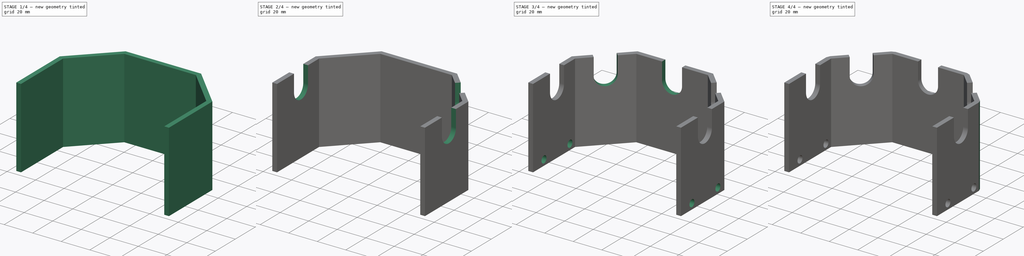
[diagram: build sequence overview — one tinted view per stage of 4, left to right]
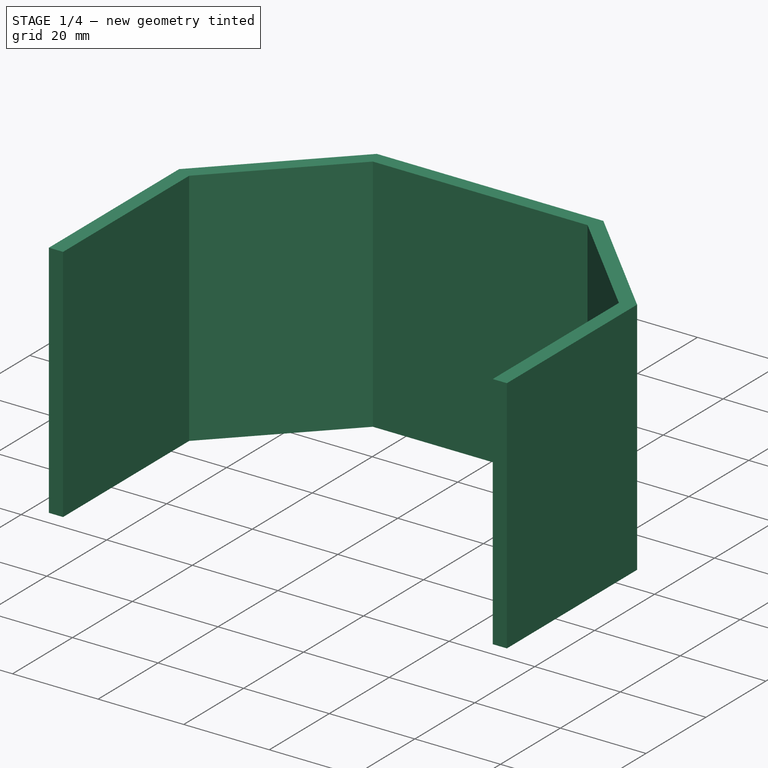
[diagram: stage 1 of 4 — iso view after this stage's code; geometry added in this stage tinted green]
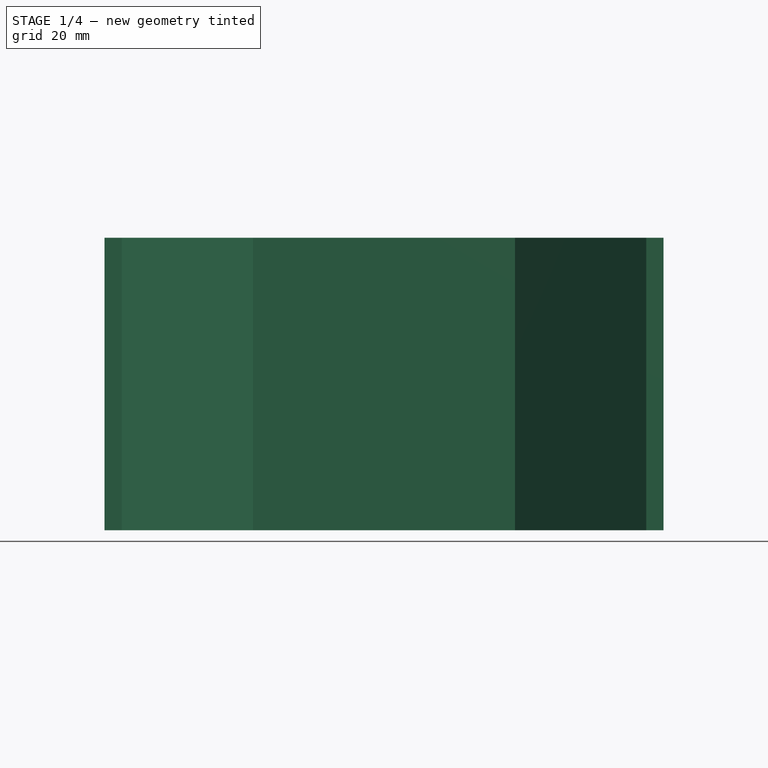
[diagram: stage 1 of 4 — front view after this stage's code; geometry added in this stage tinted green]
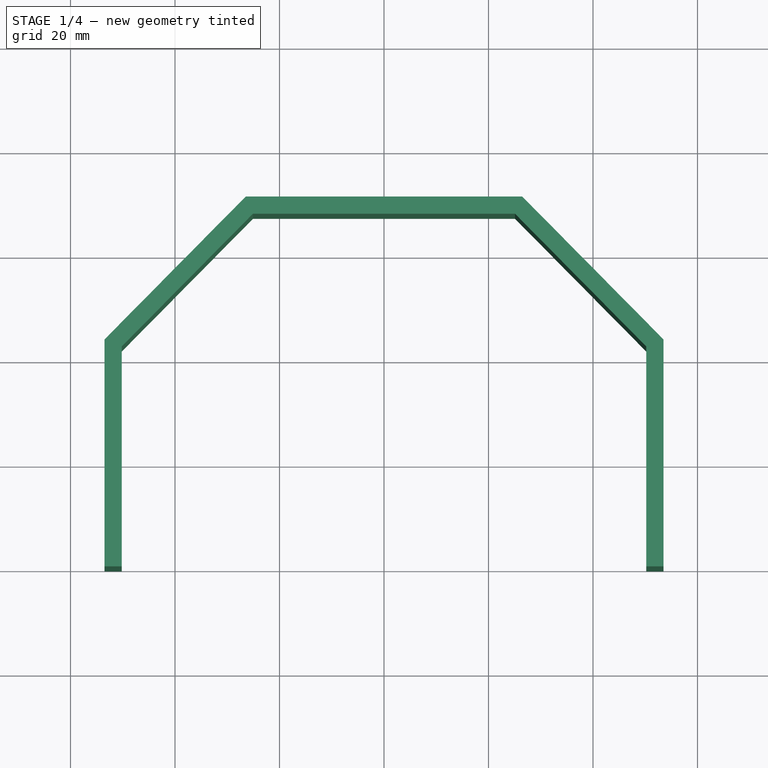
[diagram: stage 1 of 4 — top view after this stage's code; geometry added in this stage tinted green]
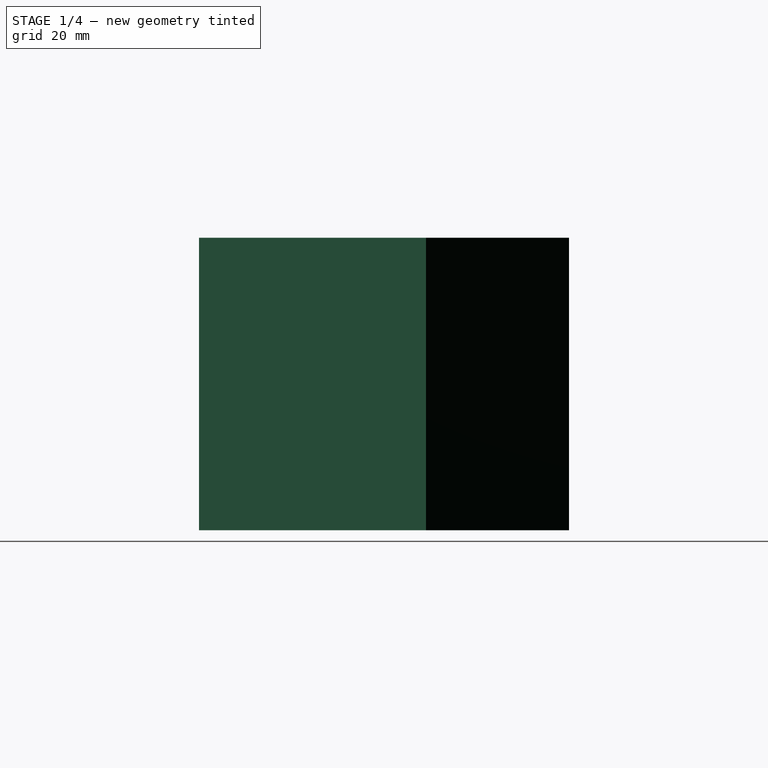
[diagram: stage 1 of 4 — right view after this stage's code; geometry added in this stage tinted green]
FCSTD DOCUMENT
Label: X_SingleExtruderShield
objects: Sketcher::SketchObject×5, PartDesign::Pocket×4, PartDesign::Chamfer×2, PartDesign::Pad×1, Part::Thickness×1, PartDesign::Mirrored×1
note: 19 computed .brp shape members not serialized (recipe doc carries the construction recipe); baked Part::Feature solids carry a one-line shape summary decoded from their .brp

FEATURE [Sketcher::SketchObject] Sketch
  sketch-geometry (6):
    g0: LineSegment StartX=-50.2 StartY=0 StartZ=0 EndX=50.2 EndY=0 EndZ=0
    g1: LineSegment StartX=50.2 StartY=0 StartZ=0 EndX=50.2 EndY=42.084 EndZ=0
    g2: LineSegment StartX=25.084 StartY=67.5 StartZ=0 EndX=-25.084 EndY=67.5 EndZ=0
    g3: LineSegment StartX=-50.2 StartY=42.084 StartZ=0 EndX=-50.2 EndY=0 EndZ=0
    g4: LineSegment StartX=-50.2 StartY=42.084 StartZ=0 EndX=-25.084 EndY=67.5 EndZ=0
    g5: LineSegment StartX=50.2 StartY=42.084 StartZ=0 EndX=25.084 EndY=67.5 EndZ=0
  constraints (17):
    c: Coincident(g0,g1)
    c: Coincident(g3,g0)
    c: Horizontal(g2)
    c: Vertical(g1)
    c: Vertical(g3)
    c: PointOnObject(g0,g-1)
    c: Coincident(g2,g4)
    c: Coincident(g4,g3)
    c: Coincident(g2,g5)
    c: Coincident(g5,g1)
    c: Symmetric(g0,g0,g-2)
    c: Equal(g1,g3)
    c: Equal(g5,g4)
    c: DistanceY(g2,g0) = -67.5
    c: DistanceX(g0) = 100.4
    c: DistanceY(g3) = -42.084
    c: DistanceX(g2) = -25.084
FEATURE [PartDesign::Pad] Pad
  Length = 56
  Length2 = 100
  Sketch = -> Sketch
  Type = 0
FEATURE [Part::Thickness] Thickness
  Faces = -> Pad [Face8,Face4,Face7]
  Intersection = false
  Join = 2
  Mode = 0
  SelfIntersection = false
  Value = 3.3
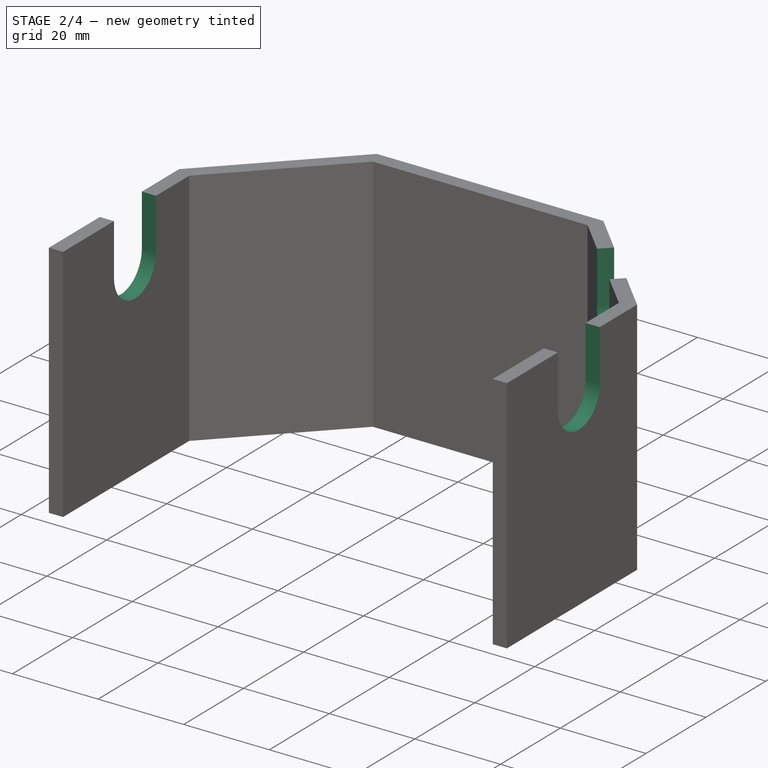
[diagram: stage 2 of 4 — iso view after this stage's code; geometry added in this stage tinted green]
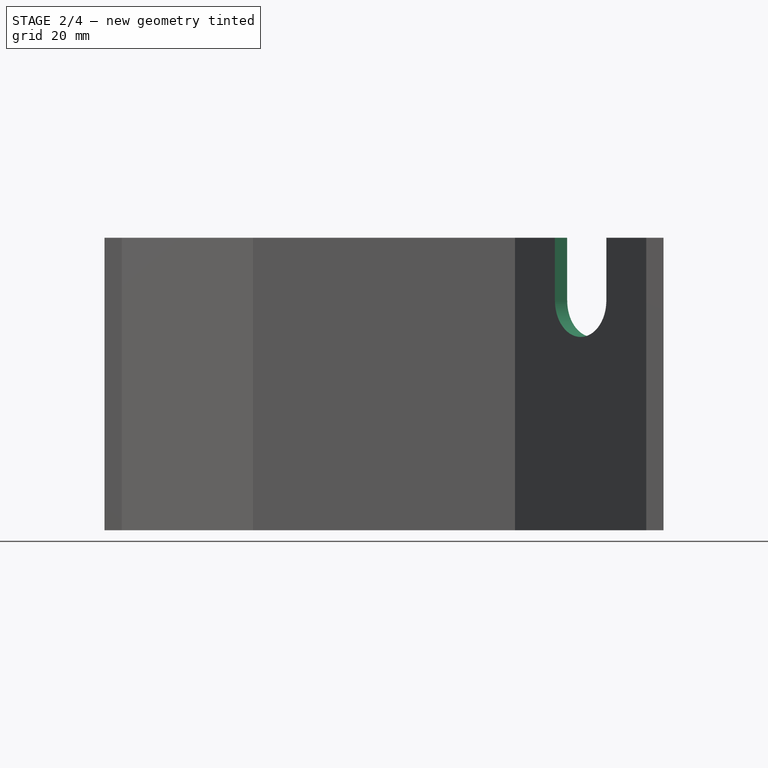
[diagram: stage 2 of 4 — front view after this stage's code; geometry added in this stage tinted green]
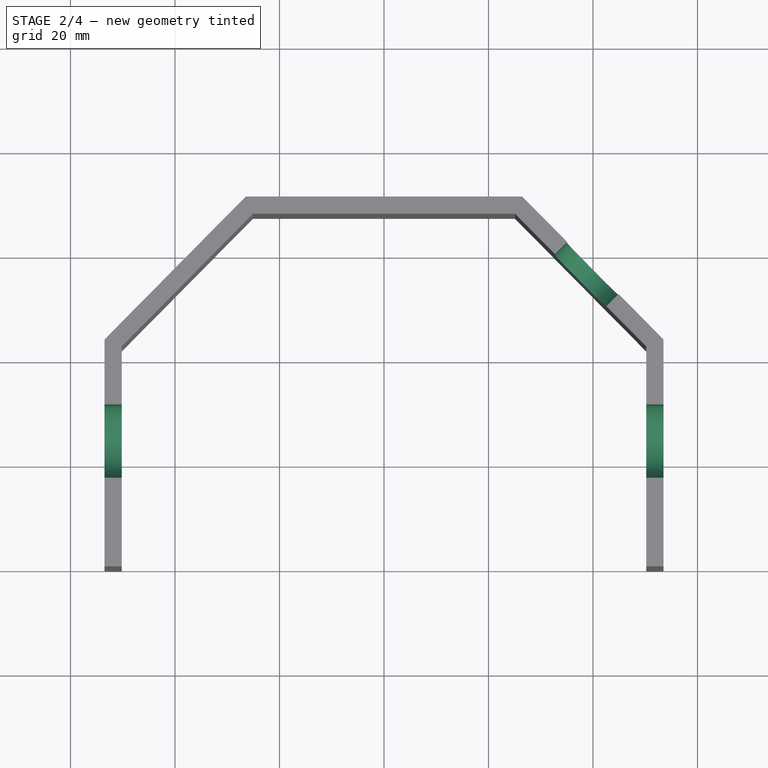
[diagram: stage 2 of 4 — top view after this stage's code; geometry added in this stage tinted green]
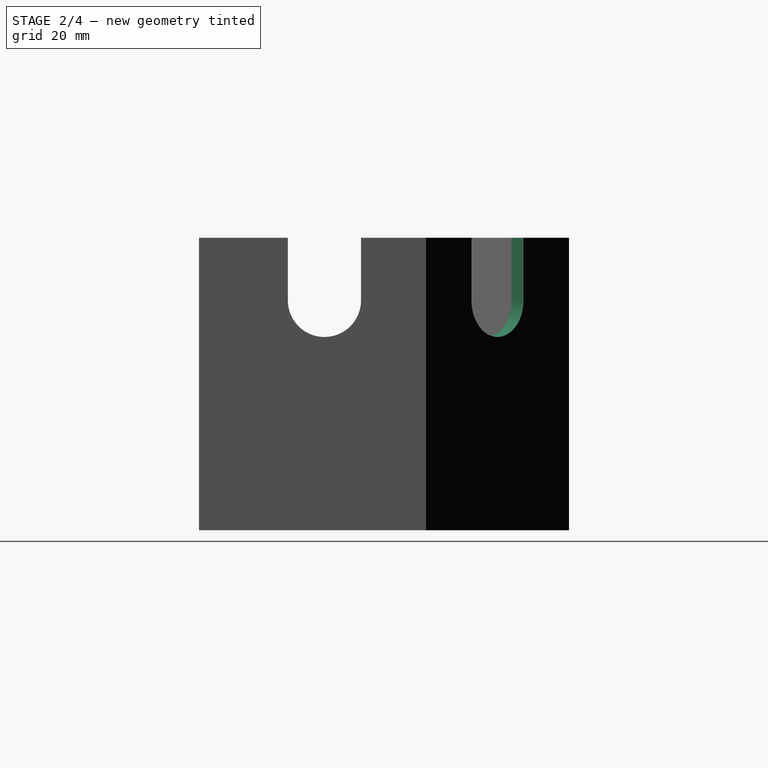
[diagram: stage 2 of 4 — right view after this stage's code; geometry added in this stage tinted green]
FEATURE [Sketcher::SketchObject] Sketch002
  ExternalGeometry = -> [Thickness]
  Placement = pos=(53.5,0,0) rot=(0.57735,0.57735,0.57735;2.0944rad)
  Support = -> Thickness [Face12]
  sketch-geometry (4):
    g0: LineSegment StartX=17 StartY=56 StartZ=0 EndX=17 EndY=44 EndZ=0
    g1: ArcOfCircle CenterX=24 CenterY=44 CenterZ=0 NormalX=0 NormalY=0 NormalZ=1 Radius=7 StartAngle=3.14159 EndAngle=6.28319
    g2: LineSegment StartX=31 StartY=44 StartZ=0 EndX=31 EndY=56 EndZ=0
    g3: LineSegment StartX=31 StartY=56 StartZ=0 EndX=17 EndY=56 EndZ=0
  constraints (11):
    c: Vertical(g0)
    c: Tangent(g0,g1)
    c: Tangent(g1,g2)
    c: Coincident(g2,g3)
    c: Coincident(g3,g0)
    c: Horizontal(g3)
    c: PointOnObject(g-3,g3)
    c: Vertical(g2)
    c: DistanceY(g0) = -12
    c: Radius(g1) = 7
    c: DistanceX(g1) = 24
FEATURE [PartDesign::Pocket] Pocket
  Length = 5
  Sketch = -> Sketch002
  Type = 1
FEATURE [Sketcher::SketchObject] Sketch003
  ExternalGeometry = -> [Pocket]
  Placement = pos=(48.7858,48.21,0) rot=(0.283259,0.678146,0.678146;2.58954rad)
  Support = -> Pocket [Face15]
  sketch-geometry (5):
    g0: LineSegment StartX=5.52617 StartY=58 StartZ=0 EndX=5.52617 EndY=44 EndZ=0
    g1: ArcOfCircle CenterX=12.5262 CenterY=44 CenterZ=0 NormalX=0 NormalY=0 NormalZ=1 Radius=7 StartAngle=3.14159 EndAngle=6.28319
    g2: LineSegment StartX=19.5262 StartY=44 StartZ=0 EndX=19.5262 EndY=58 EndZ=0
    g3: LineSegment StartX=19.5262 StartY=58 StartZ=0 EndX=5.52617 EndY=58 EndZ=0
    g4: LineSegment [constr] StartX=12.5262 StartY=44 StartZ=0 EndX=12.5262 EndY=56 EndZ=0
  constraints (13):
    c: Vertical(g0)
    c: Tangent(g0,g1)
    c: Tangent(g1,g2)
    c: Coincident(g2,g3)
    c: Horizontal(g3)
    c: Coincident(g3,g0)
    c: Vertical(g2)
    c: Radius(g1) = 7
    c: DistanceY(g0) = -14
    c: Coincident(g4,g1)
    c: Vertical(g4)
    c: Symmetric(g-3,g-3,g4)
    c: DistanceY(g4) = 12
FEATURE [PartDesign::Pocket] Pocket001
  Length = 5
  Sketch = -> Sketch003
  Type = 0
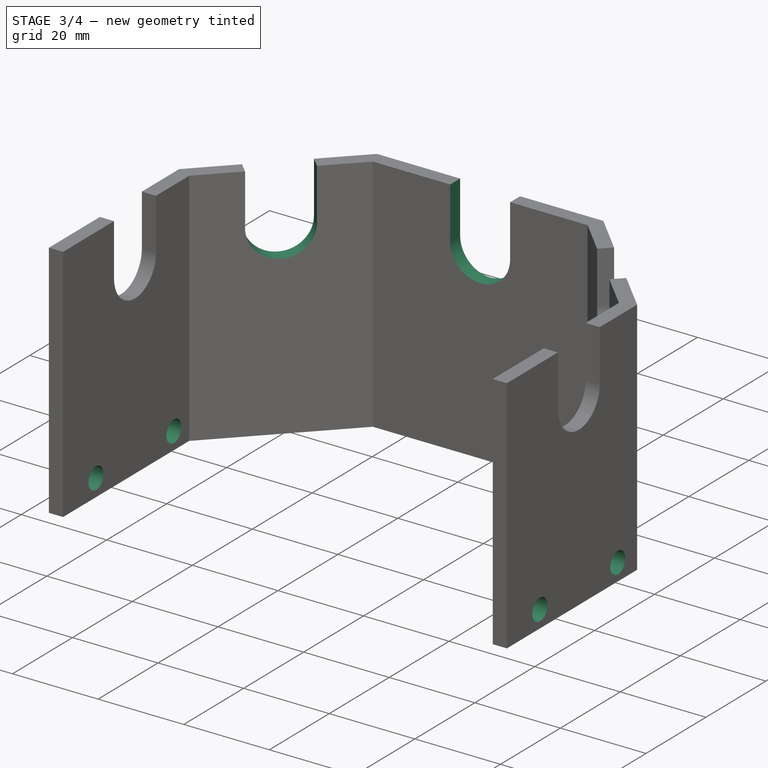
[diagram: stage 3 of 4 — iso view after this stage's code; geometry added in this stage tinted green]
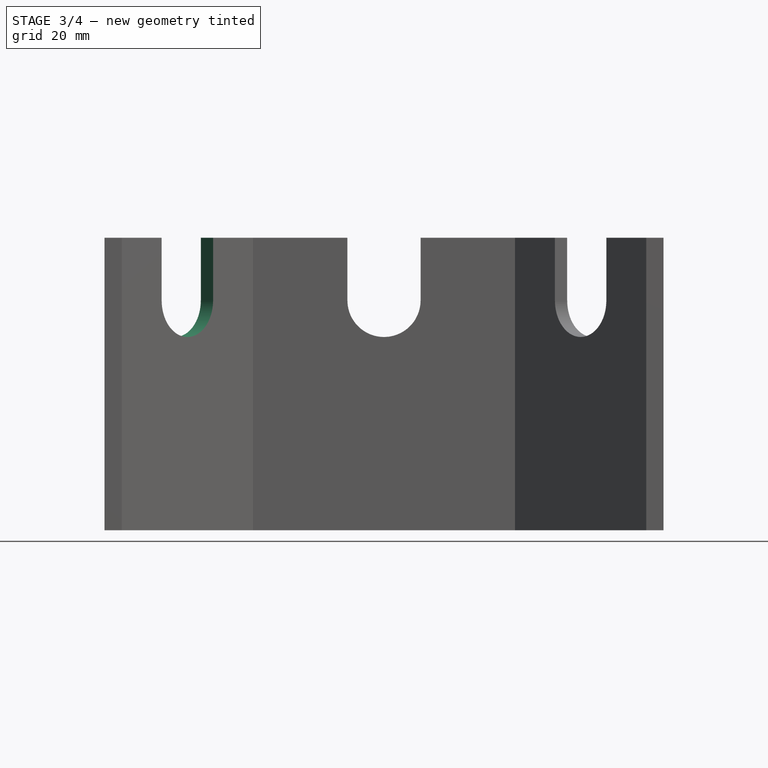
[diagram: stage 3 of 4 — front view after this stage's code; geometry added in this stage tinted green]
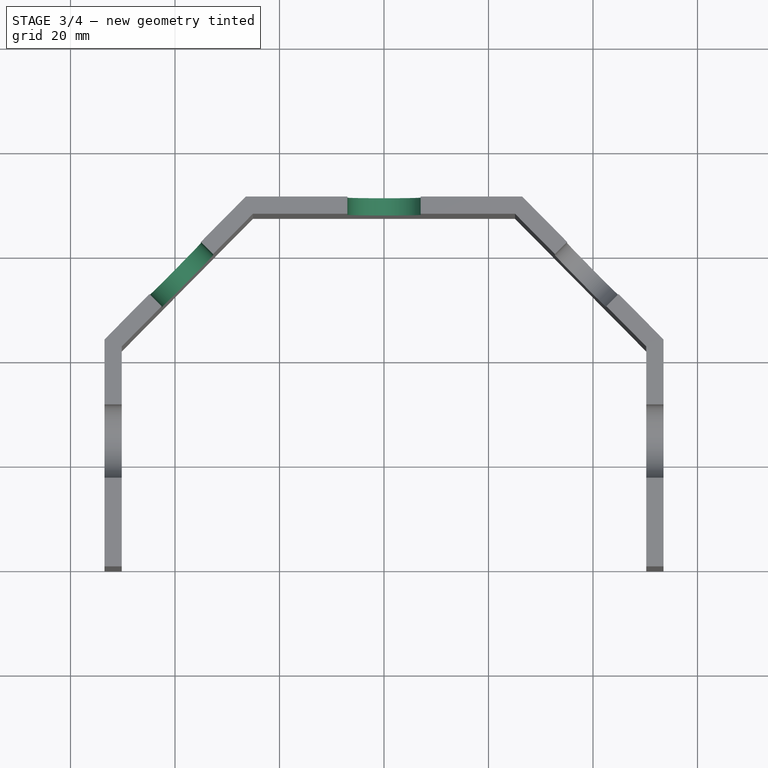
[diagram: stage 3 of 4 — top view after this stage's code; geometry added in this stage tinted green]
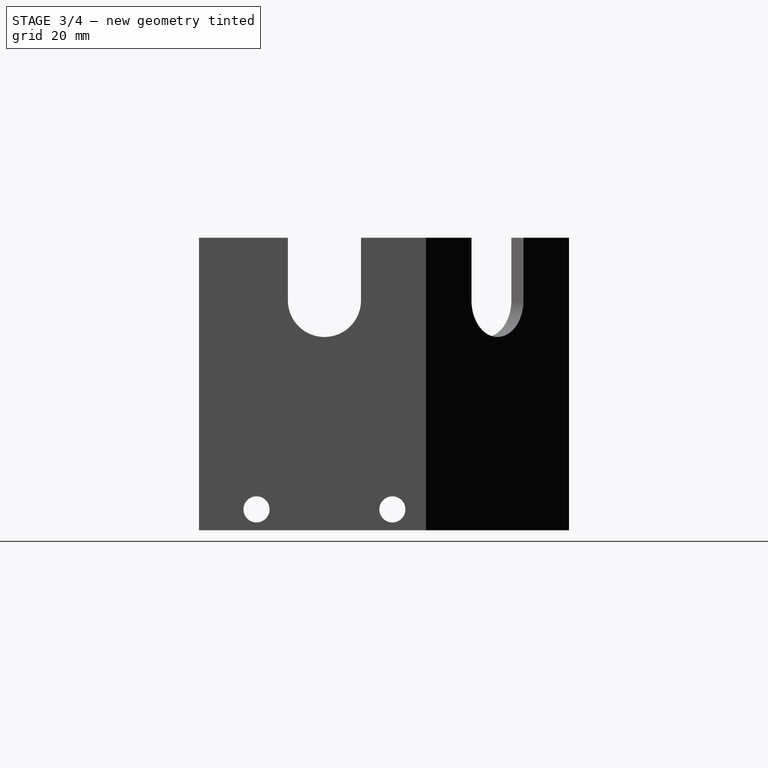
[diagram: stage 3 of 4 — right view after this stage's code; geometry added in this stage tinted green]
FEATURE [PartDesign::Mirrored] Mirrored
  Originals = -> [Pocket001]
  StdMirrorPlane = YZ
FEATURE [Sketcher::SketchObject] Sketch003001  label="Sketch004"
  ExternalGeometry = -> [Mirrored]
  Placement = pos=(0,70.8,0) rot=(0,0.707107,0.707107;3.14159rad)
  Support = -> Mirrored [Face17]
  sketch-geometry (4):
    g0: LineSegment StartX=-7 StartY=56 StartZ=0 EndX=-7 EndY=44 EndZ=0
    g1: ArcOfCircle CenterX=0 CenterY=44 CenterZ=0 NormalX=0 NormalY=0 NormalZ=1 Radius=7 StartAngle=3.14159 EndAngle=6.28319
    g2: LineSegment StartX=7 StartY=44 StartZ=0 EndX=7 EndY=56 EndZ=0
    g3: LineSegment StartX=7 StartY=56 StartZ=0 EndX=-7 EndY=56 EndZ=0
  constraints (11):
    c: Vertical(g0)
    c: Tangent(g0,g1)
    c: Tangent(g1,g2)
    c: Coincident(g2,g3)
    c: Horizontal(g3)
    c: Coincident(g3,g0)
    c: Vertical(g2)
    c: Radius(g1) = 7
    c: DistanceY(g0) = -12
    c: PointOnObject(g1,g-2)
    c: PointOnObject(g-3,g3)
FEATURE [PartDesign::Pocket] Pocket002
  Length = 5
  Sketch = -> Sketch003001
  Type = 1
FEATURE [Sketcher::SketchObject] Sketch003002
  Placement = pos=(53.5,0,0) rot=(0.57735,0.57735,0.57735;2.0944rad)
  Support = -> Pocket002 [Face19]
  sketch-geometry (3):
    g0: Circle CenterX=11 CenterY=4 CenterZ=0 NormalX=0 NormalY=0 NormalZ=1 Radius=2.5
    g1: LineSegment [constr] StartX=11 StartY=4 StartZ=0 EndX=37 EndY=4 EndZ=0
    g2: Circle CenterX=37 CenterY=4 CenterZ=0 NormalX=0 NormalY=0 NormalZ=1 Radius=2.5
  constraints (8):
    c: Coincident(g1,g0)
    c: Horizontal(g1)
    c: Coincident(g2,g1)
    c: Equal(g2,g0)
    c: Radius(g2) = 2.5
    c: DistanceX(g0) = 11
    c: DistanceY(g0) = 4
    c: DistanceX(g1) = 26
FEATURE [PartDesign::Pocket] Pocket003
  Length = 5
  Sketch = -> Sketch003002
  Type = 1
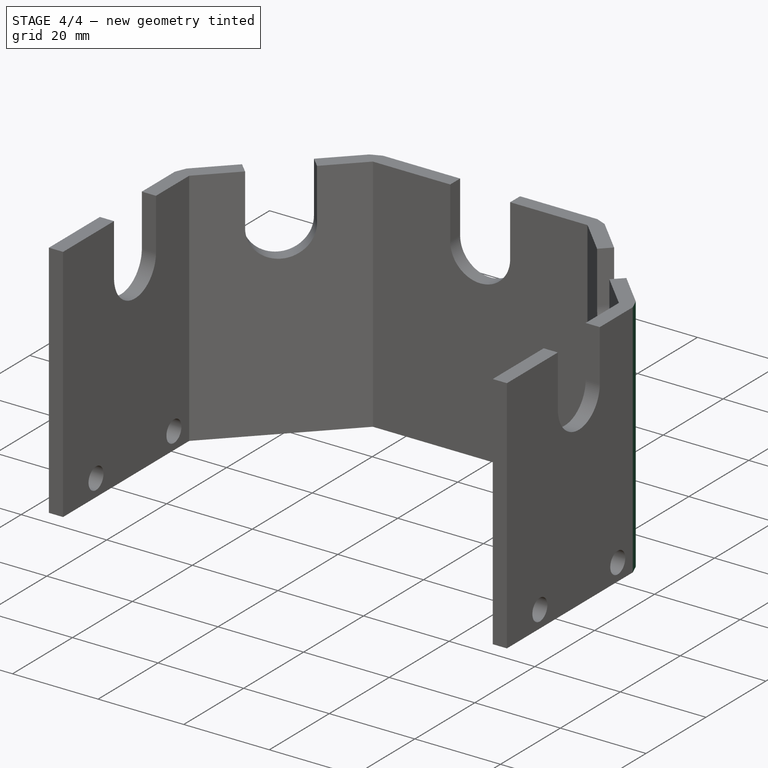
[diagram: stage 4 of 4 — iso view after this stage's code; geometry added in this stage tinted green]
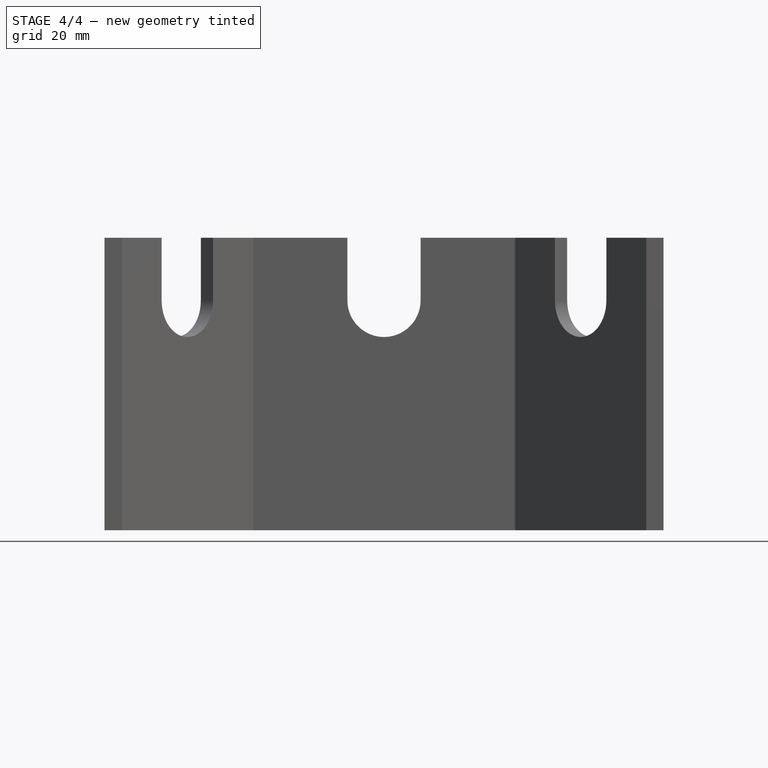
[diagram: stage 4 of 4 — front view after this stage's code; geometry added in this stage tinted green]
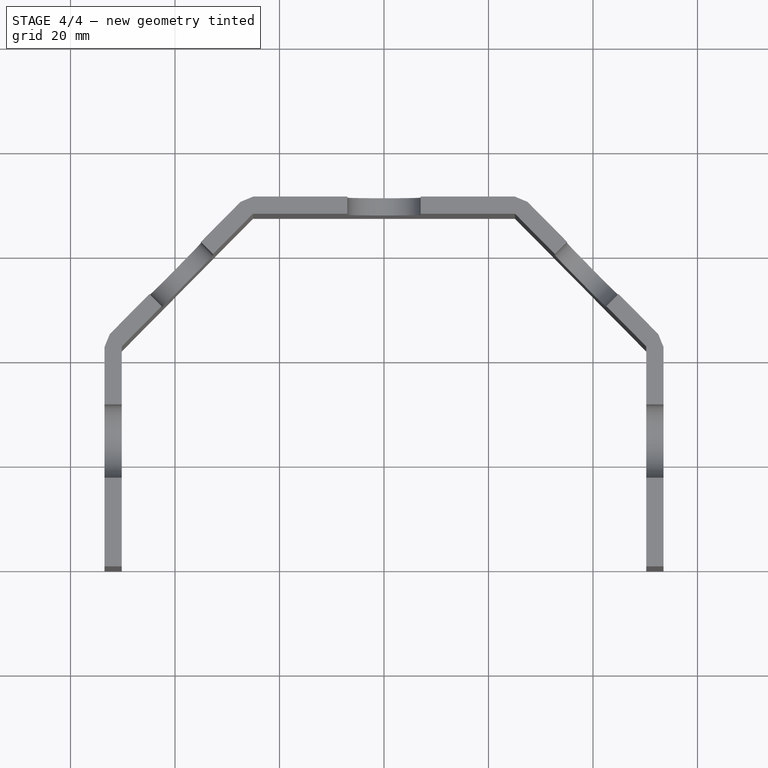
[diagram: stage 4 of 4 — top view after this stage's code; geometry added in this stage tinted green]
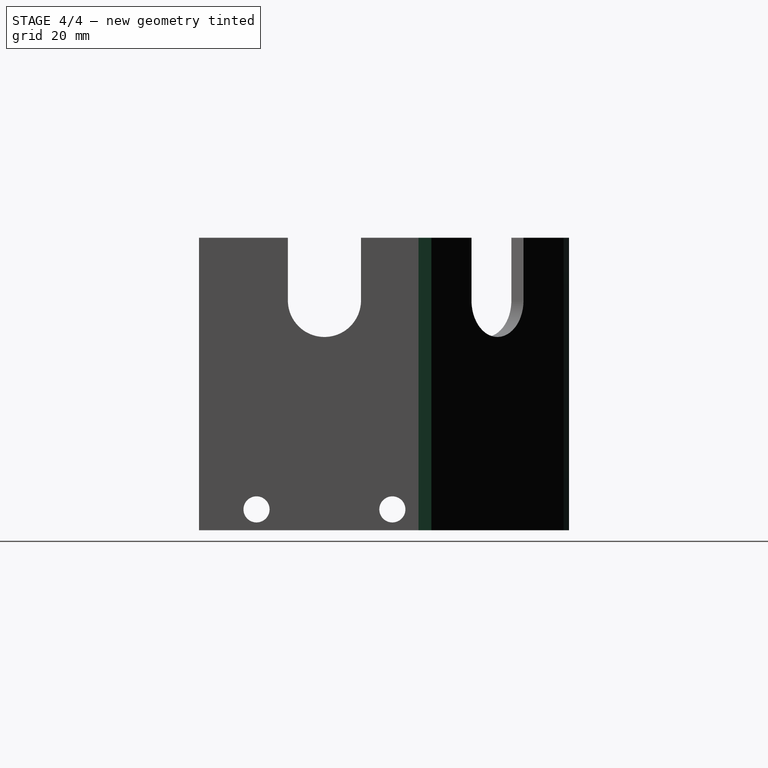
[diagram: stage 4 of 4 — right view after this stage's code; geometry added in this stage tinted green]
FEATURE [PartDesign::Chamfer] Chamfer
  Base = -> Pocket003 [Edge15,Edge45,Edge57,Edge92]
  Size = 0.08
FEATURE [PartDesign::Chamfer] Chamfer001
  Base = -> Chamfer [Edge93,Edge100,Edge94,Edge86]
  Size = 1.44
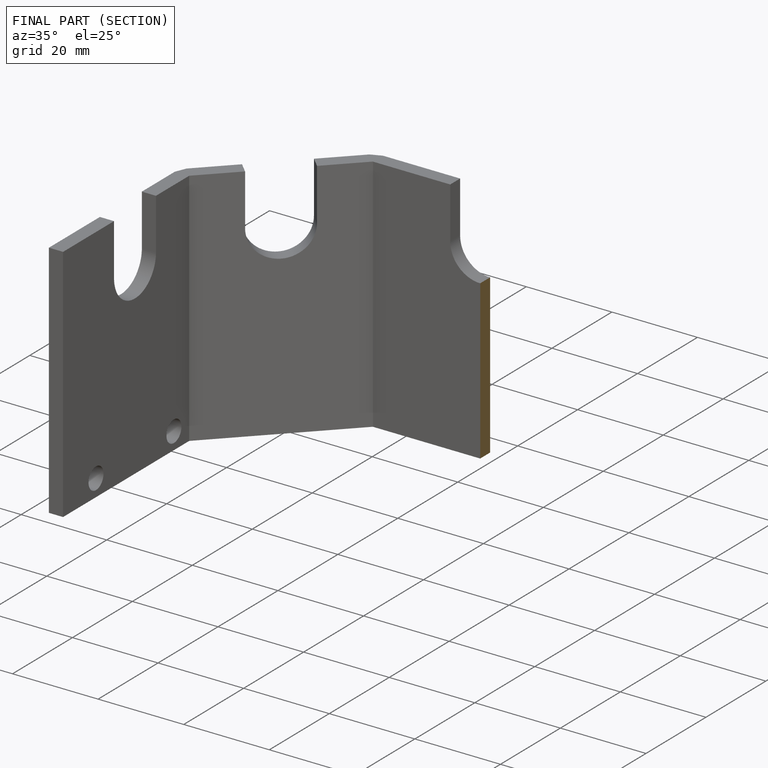
[diagram: finished part — half-section view (interior)]
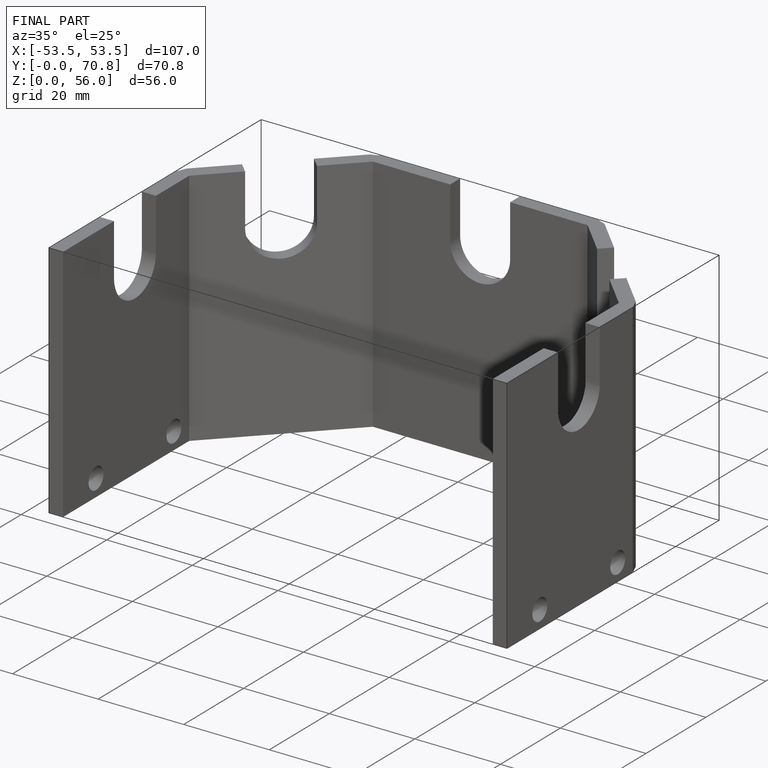
[diagram: finished part — iso view with bounding-box wireframe]
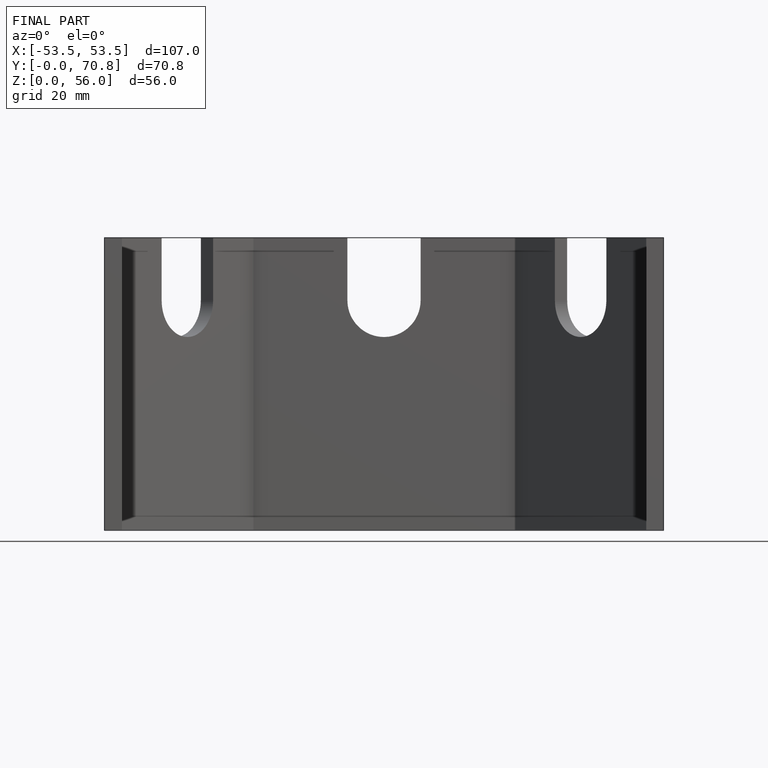
[diagram: finished part — front view with bounding-box wireframe]
